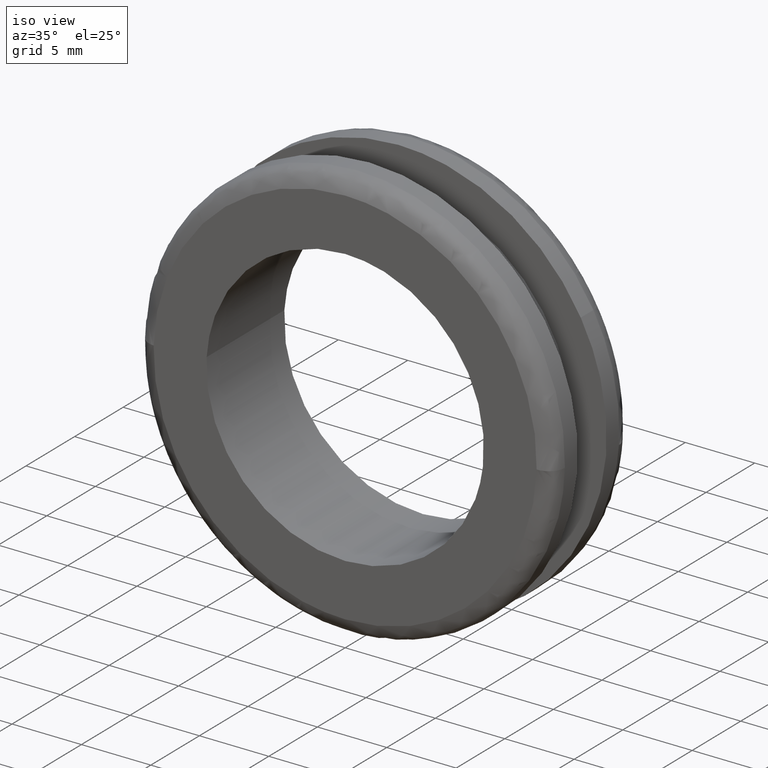
[diagram: clean part render]
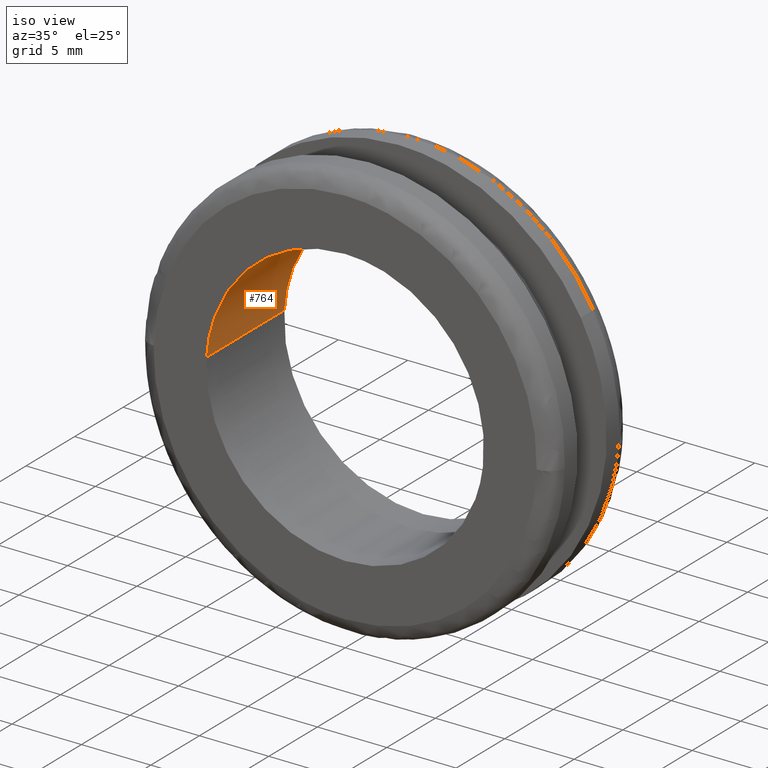
[diagram: same view with one face highlighted and labeled with its STEP entity id]
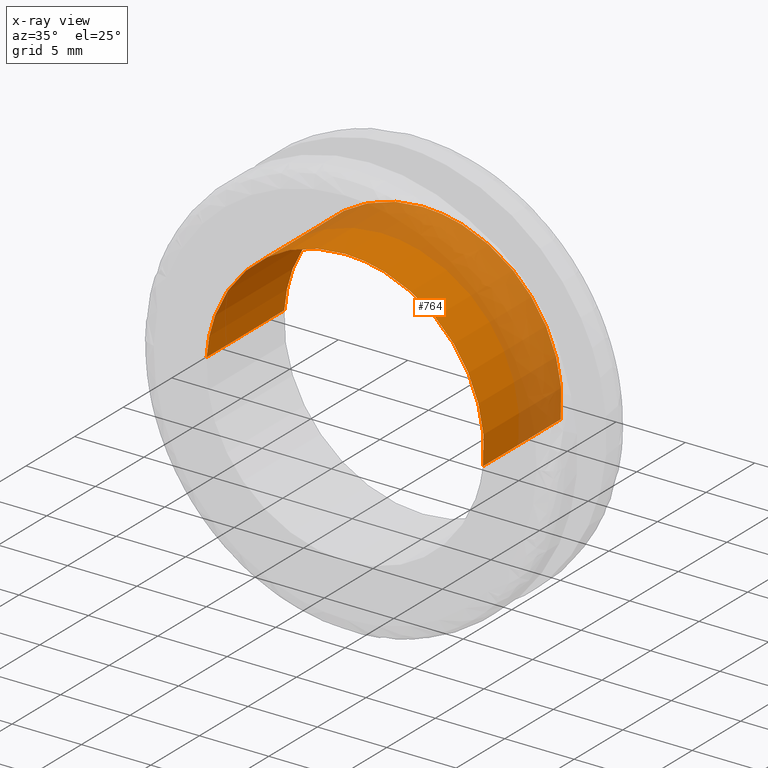
[diagram: x-ray of the same camera — body ghosted, the highlighted face saturated]
A machine part, iso view. The second image highlights one B-rep face of the part: STEP entity #764.
The next image is the same camera in x-ray: the body ghosted, the highlighted face saturated — about 46% of this face is hidden behind the body in this view.
In plain terms, the highlighted face is a freeform B-spline surface patch.
Its self-contained STEP definition (entity closure, byte-faithful):
#662=CARTESIAN_POINT('',(9.930095263636664,8.200000000000003,-1.180342346567585));
#663=CARTESIAN_POINT('',(9.963876154486057,8.200000000000001,-0.896147286379777));
#664=CARTESIAN_POINT('',(9.981347984218667,8.200000000000001,-0.610485395348570));
#665=CARTESIAN_POINT('',(10.591833379567237,8.200000000000001,9.370862588870097));
#666=CARTESIAN_POINT('',(0.610485395348570,8.200000000000001,9.981347984218667));
#667=CARTESIAN_POINT('',(-9.370862588870097,8.200000000000001,10.591833379567237));
#668=CARTESIAN_POINT('',(-9.981347984218667,8.200000000000001,0.610485395348570));
#669=CARTESIAN_POINT('',(9.930095263636664,-0.205000000000002,-1.180342346567585));
#670=CARTESIAN_POINT('',(9.963876154486057,-0.205000000000002,-0.896147286379777));
#671=CARTESIAN_POINT('',(9.981347984218667,-0.205000000000002,-0.610485395348570));
#672=CARTESIAN_POINT('',(10.591833379567237,-0.205000000000002,9.370862588870097));
#673=CARTESIAN_POINT('',(0.610485395348570,-0.205000000000002,9.981347984218667));
#674=CARTESIAN_POINT('',(-9.370862588870097,-0.205000000000002,10.591833379567237));
#675=CARTESIAN_POINT('',(-9.981347984218667,-0.205000000000002,0.610485395348570));
#683=(BOUNDED_SURFACE()B_SPLINE_SURFACE(2,1,((#662,#669),(#663,#670),(#664,#671),(#665,#672),(#666,#673),(#667,#674),(#668,#675)),.UNSPECIFIED.,.F.,.F.,.U.)B_SPLINE_SURFACE_WITH_KNOTS((3,2,2,3),(2,2),(0.0,0.662741699796953,17.231284194720750,33.799826689644547),(0.0,8.405000000000003),.UNSPECIFIED.)GEOMETRIC_REPRESENTATION_ITEM()RATIONAL_B_SPLINE_SURFACE(((0.977505800795127,0.977505800795127),(0.988284271247462,0.988284271247462),(1.0,1.0),(0.707106781186548,0.707106781186548),(1.0,1.0),(0.707106781186548,0.707106781186548),(1.0,1.0)))REPRESENTATION_ITEM('')SURFACE());
#684=CARTESIAN_POINT('',(9.930095816520570,7.999999999999978,-1.180337695195174));
#685=VERTEX_POINT('',#684);
#686=CARTESIAN_POINT('',(0.0,8.0,10.0));
#687=VERTEX_POINT('',#686);
#688=CARTESIAN_POINT('',(9.930095816520570,7.999999999999978,-1.180337695195174));
#689=CARTESIAN_POINT('',(10.0,8.0,-0.592238846246202));
#690=CARTESIAN_POINT('',(10.0,8.0,-1.928755E-016));
#691=CARTESIAN_POINT('',(10.000000000000002,8.0,10.000000000000002));
#692=CARTESIAN_POINT('',(0.0,8.0,10.0));
#700=(BOUNDED_CURVE()B_SPLINE_CURVE(2,(#688,#689,#690,#691,#692),.UNSPECIFIED.,.F.,.U.)B_SPLINE_CURVE_WITH_KNOTS((3,2,3),(0.229562552678739,0.250000000000000,0.500000000000000),.UNSPECIFIED.)CURVE()GEOMETRIC_REPRESENTATION_ITEM()RATIONAL_B_SPLINE_CURVE((0.956026909350850,0.976056041078982,1.0,0.707106781186548,1.0))REPRESENTATION_ITEM(''));
#701=EDGE_CURVE('',#685,#687,#700,.T.);
#702=ORIENTED_EDGE('',*,*,#701,.F.);
#703=CARTESIAN_POINT('',(9.930095809866085,-2.650506E-015,-1.180337751179104));
#704=VERTEX_POINT('',#703);
#705=CARTESIAN_POINT('',(9.930095816520570,7.999999999999978,-1.180337695195174));
#706=CARTESIAN_POINT('',(9.930095809866085,-2.650506E-015,-1.180337751179104));
#707=QUASI_UNIFORM_CURVE('',1,(#705,#706),.UNSPECIFIED.,.F.,.U.);
#708=EDGE_CURVE('',#685,#704,#707,.T.);
#709=ORIENTED_EDGE('',*,*,#708,.T.);
#710=CARTESIAN_POINT('',(0.0,-1.836910E-015,10.0));
#711=VERTEX_POINT('',#710);
#712=CARTESIAN_POINT('',(9.930095809866085,-2.650506E-015,-1.180337751179103));
#713=CARTESIAN_POINT('',(9.999999999999998,-1.836910E-015,-0.592238874534090));
#714=CARTESIAN_POINT('',(10.0,-1.836910E-015,-1.928755E-016));
#715=CARTESIAN_POINT('',(10.000000000000002,-1.836910E-015,10.000000000000002));
#716=CARTESIAN_POINT('',(0.0,-1.836910E-015,10.0));
#724=(BOUNDED_CURVE()B_SPLINE_CURVE(2,(#712,#713,#714,#715,#716),.UNSPECIFIED.,.F.,.U.)B_SPLINE_CURVE_WITH_KNOTS((3,2,3),(0.229562551725932,0.250000000000000,0.500000000000000),.UNSPECIFIED.)CURVE()GEOMETRIC_REPRESENTATION_ITEM()RATIONAL_B_SPLINE_CURVE((0.956026907483308,0.976056039962699,1.0,0.707106781186548,1.0))REPRESENTATION_ITEM(''));
#725=EDGE_CURVE('',#704,#711,#724,.T.);
#726=ORIENTED_EDGE('',*,*,#725,.T.);
#727=CARTESIAN_POINT('',(-9.981348738550697,-1.709489E-015,0.610473061878840));
#728=VERTEX_POINT('',#727);
#729=CARTESIAN_POINT('',(0.0,-1.836910E-015,10.0));
#730=CARTESIAN_POINT('',(-9.407072314634801,-1.836910E-015,10.0));
#731=CARTESIAN_POINT('',(-9.981348738550697,-1.709489E-015,0.610473061878840));
#739=(BOUNDED_CURVE()B_SPLINE_CURVE(2,(#729,#730,#731),.UNSPECIFIED.,.F.,.U.)B_SPLINE_CURVE_WITH_KNOTS((3,3),(0.500000000000000,0.739333175449739),.UNSPECIFIED.)CURVE()GEOMETRIC_REPRESENTATION_ITEM()RATIONAL_B_SPLINE_CURVE((1.0,0.719603743494725,0.976072498618465))REPRESENTATION_ITEM(''));
#740=EDGE_CURVE('',#711,#728,#739,.T.);
#741=ORIENTED_EDGE('',*,*,#740,.T.);
#742=CARTESIAN_POINT('',(-9.981348747747294,7.999999999999966,0.610472911509662));
#743=VERTEX_POINT('',#742);
#744=CARTESIAN_POINT('',(-9.981348747747294,7.999999999999966,0.610472911509662));
#745=CARTESIAN_POINT('',(-9.981348738550697,-1.709489E-015,0.610473061878840));
#746=QUASI_UNIFORM_CURVE('',1,(#744,#745),.UNSPECIFIED.,.F.,.U.);
#747=EDGE_CURVE('',#743,#728,#746,.T.);
#748=ORIENTED_EDGE('',*,*,#747,.F.);
#749=CARTESIAN_POINT('',(0.0,8.0,10.0));
#750=CARTESIAN_POINT('',(-9.407072456617298,8.0,9.999999999999998));
#751=CARTESIAN_POINT('',(-9.981348747747294,7.999999999999966,0.610472911509662));
#759=(BOUNDED_CURVE()B_SPLINE_CURVE(2,(#749,#750,#751),.UNSPECIFIED.,.F.,.U.)B_SPLINE_CURVE_WITH_KNOTS((3,3),(0.500000000000000,0.739333178049160),.UNSPECIFIED.)CURVE()GEOMETRIC_REPRESENTATION_ITEM()RATIONAL_B_SPLINE_CURVE((1.0,0.719603740449314,0.976072504189530))REPRESENTATION_ITEM(''));
#760=EDGE_CURVE('',#687,#743,#759,.T.);
#761=ORIENTED_EDGE('',*,*,#760,.F.);
#762=EDGE_LOOP('',(#702,#709,#726,#741,#748,#761));
#763=FACE_OUTER_BOUND('',#762,.T.);
#764=ADVANCED_FACE('',(#763),#683,.F.);